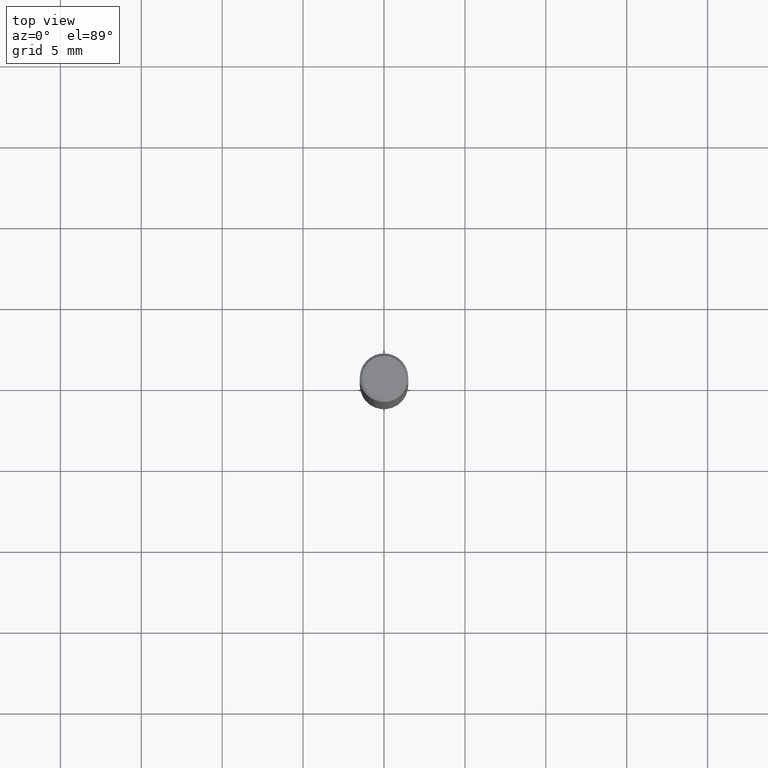
[diagram: clean part render]
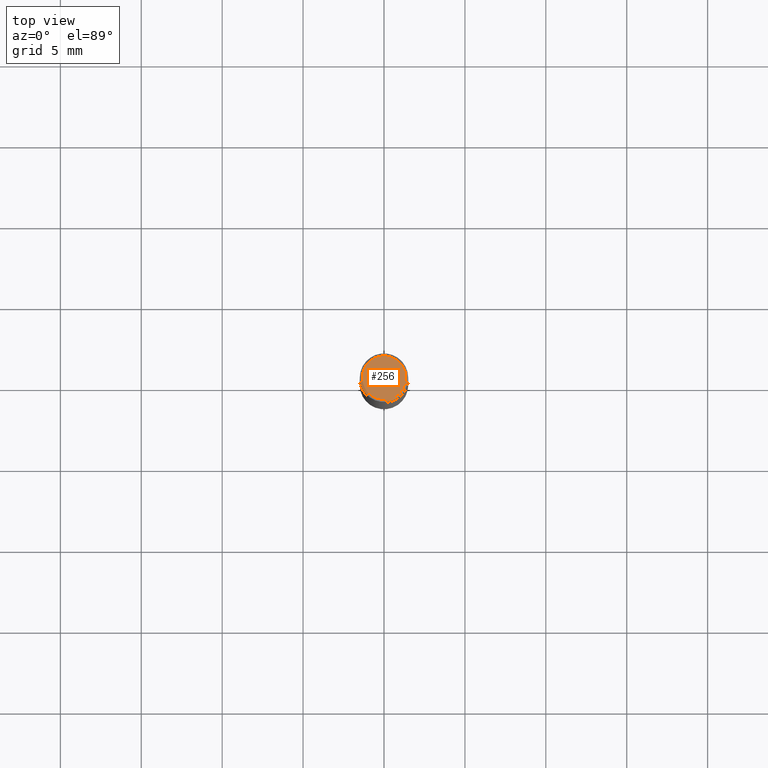
[diagram: same view with one face highlighted and labeled with its STEP entity id]
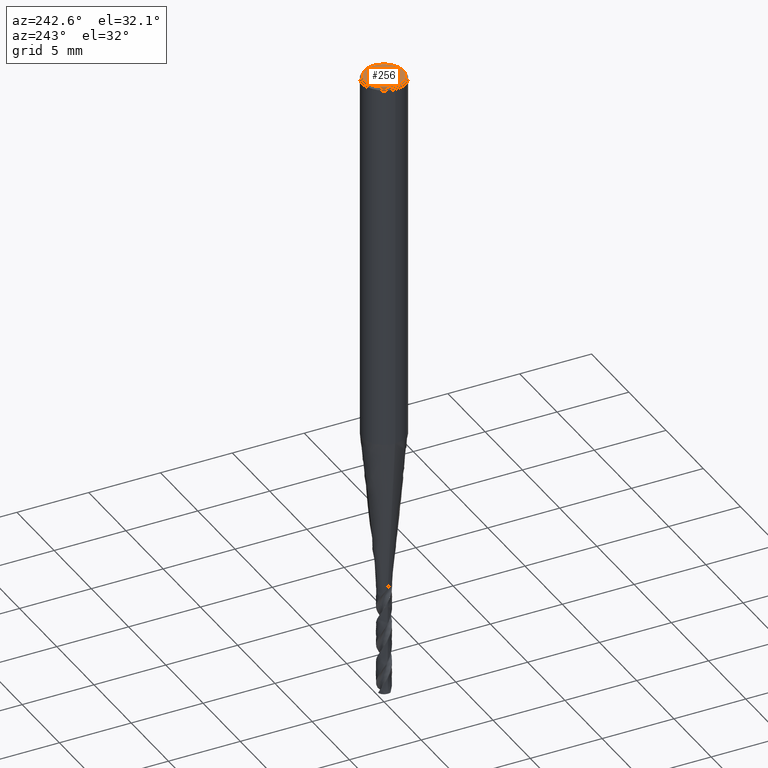
[diagram: same view with one face highlighted and labeled with its STEP entity id]
A machine part, top view. The second image highlights one B-rep face of the part: STEP entity #256.
A second angle (auxiliary view) of the same face is appended — the face is thin or edge-on in the first view.
In plain terms, the highlighted planar face has unit normal (0, -0, 1).
Its self-contained STEP definition (entity closure, byte-faithful):
#216 = VERTEX_POINT('', #217);
#217 = CARTESIAN_POINT('', (-1.35, 8.26636589424463E-17, 0.));
#223 = EDGE_CURVE('', #216, #216, #224, .T.);
#224 = CIRCLE('', #225, 1.35);
#225 = AXIS2_PLACEMENT_3D('', #226, #227, #228);
#226 = CARTESIAN_POINT('', (0., 0., 0.));
#227 = DIRECTION('', (3.74939945665464E-33, 6.12323399573677E-17, -1.));
#228 = DIRECTION('', (-1., 6.12323399573677E-17, 0.));
#256 = ADVANCED_FACE('', (#257), #260, .T.);
#257 = FACE_OUTER_BOUND('', #258, .T.);
#258 = EDGE_LOOP('', (#259));
#259 = ORIENTED_EDGE('', *, *, #223, .F.);
#260 = PLANE('', #261);
#261 = AXIS2_PLACEMENT_3D('', #262, #263, #264);
#262 = CARTESIAN_POINT('', (2.10010714012405, -2.10010714012405, -2.22354962926185E-14));
#263 = DIRECTION('', (5.26327952414889E-15, -5.32451186410626E-15, 1.));
#264 = DIRECTION('', (0., 1., 5.32451186410626E-15));